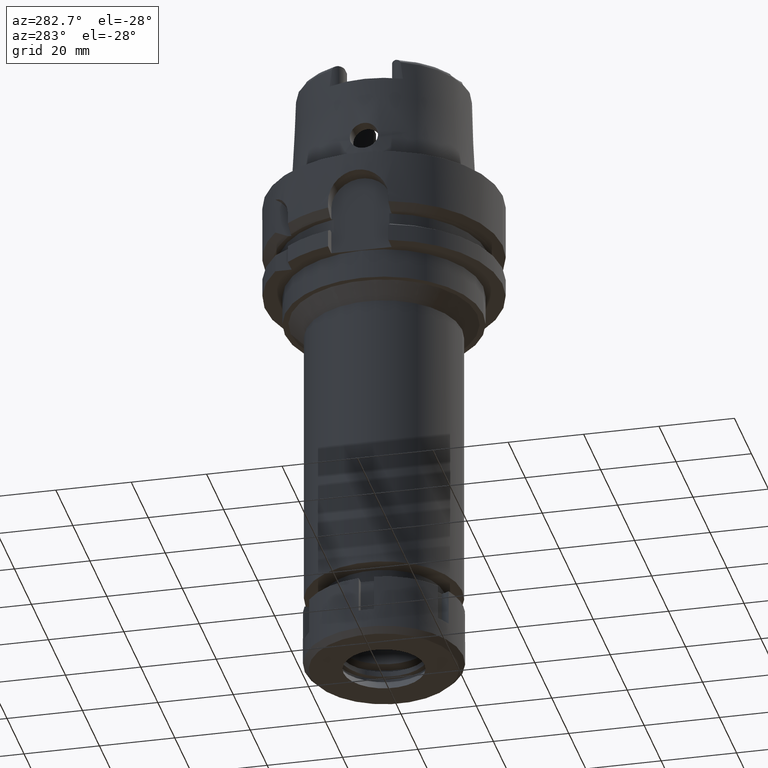
[diagram: clean part render]
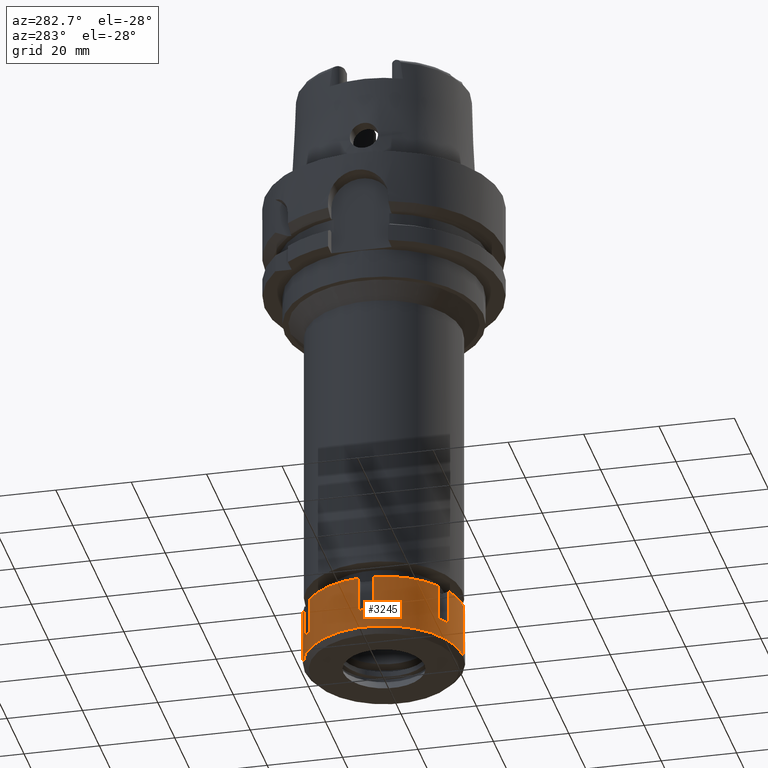
[diagram: same view with one face highlighted and labeled with its STEP entity id]
A machine part, auxiliary view. The second image highlights one B-rep face of the part: STEP entity #3245.
In plain terms, the highlighted cylindrical surface (partial cylindrical patch) has radius 21 mm, axis along (0, 0, -1).
Its self-contained STEP definition (entity closure, byte-faithful):
#21 = DIRECTION ( 'NONE',  ( 0.0000000000000000000, 0.0000000000000000000, -1.000000000000000000 ) ) ;
#61 = AXIS2_PLACEMENT_3D ( 'NONE', #2734, #2707, #4599 ) ;
#121 = FACE_OUTER_BOUND ( 'NONE', #3756, .T. ) ;
#152 = VECTOR ( 'NONE', #3441, 1000.000000000000000 ) ;
#157 = DIRECTION ( 'NONE',  ( 0.0000000000000000000, 0.0000000000000000000, 1.000000000000000000 ) ) ;
#216 = CARTESIAN_POINT ( 'NONE',  ( -20.90454496036999998, -2.000000000000000000, -9.500000000000000000 ) ) ;
#243 = CIRCLE ( 'NONE', #3870, 21.00000000000000711 ) ;
#249 = CARTESIAN_POINT ( 'NONE',  ( -12.18432328774999895, -17.10386699022999935, 0.0000000000000000000 ) ) ;
#272 = DIRECTION ( 'NONE',  ( -0.4152486510768949035, 0.9097079519157886818, 0.0000000000000000000 ) ) ;
#287 = VERTEX_POINT ( 'NONE', #1534 ) ;
#294 = CARTESIAN_POINT ( 'NONE',  ( -12.18432328774999895, -17.10386699022999935, 0.0000000000000000000 ) ) ;
#425 = EDGE_CURVE ( 'NONE', #5271, #1603, #1987, .T. ) ;
#427 = CARTESIAN_POINT ( 'NONE',  ( -8.720221672615000585, 19.10386699022999935, 0.0000000000000000000 ) ) ;
#433 = CIRCLE ( 'NONE', #2982, 20.99999999999999289 ) ;
#476 = CARTESIAN_POINT ( 'NONE',  ( 0.0000000000000000000, 0.0000000000000000000, -9.500000000000000000 ) ) ;
#477 = ORIENTED_EDGE ( 'NONE', *, *, #1122, .T. ) ;
#491 = CARTESIAN_POINT ( 'NONE',  ( 0.0000000000000000000, 0.0000000000000000000, 0.0000000000000000000 ) ) ;
#504 = VERTEX_POINT ( 'NONE', #1093 ) ;
#654 = ORIENTED_EDGE ( 'NONE', *, *, #1822, .T. ) ;
#690 = DIRECTION ( 'NONE',  ( -0.5802058708454290725, -0.8144698566776411575, 0.0000000000000000000 ) ) ;
#692 = ORIENTED_EDGE ( 'NONE', *, *, #3793, .F. ) ;
#702 = CARTESIAN_POINT ( 'NONE',  ( -20.90454496036999998, 2.000000000000000000, -9.500000000000000000 ) ) ;
#741 = VERTEX_POINT ( 'NONE', #1078 ) ;
#746 = CARTESIAN_POINT ( 'NONE',  ( -12.18432328774999895, 17.10386699022999935, -9.500000000000000000 ) ) ;
#787 = CARTESIAN_POINT ( 'NONE',  ( -8.720221672615000585, 19.10386699022999935, 0.0000000000000000000 ) ) ;
#837 = EDGE_CURVE ( 'NONE', #4298, #5041, #3034, .T. ) ;
#871 = CARTESIAN_POINT ( 'NONE',  ( -12.18432328774999895, 17.10386699022999935, -9.500000000000000000 ) ) ;
#1002 = VERTEX_POINT ( 'NONE', #2899 ) ;
#1032 = AXIS2_PLACEMENT_3D ( 'NONE', #491, #1057, #4775 ) ;
#1037 = EDGE_CURVE ( 'NONE', #504, #1002, #4571, .T. ) ;
#1052 = DIRECTION ( 'NONE',  ( 0.0000000000000000000, 0.0000000000000000000, -1.000000000000000000 ) ) ;
#1057 = DIRECTION ( 'NONE',  ( 0.0000000000000000000, 0.0000000000000000000, -1.000000000000000000 ) ) ;
#1078 = CARTESIAN_POINT ( 'NONE',  ( 0.0000000000000000000, -21.00000000000000000, 0.0000000000000000000 ) ) ;
#1087 = LINE ( 'NONE', #216, #4675 ) ;
#1093 = CARTESIAN_POINT ( 'NONE',  ( -8.720221672615998898, -19.10386699022999935, -9.500000000000000000 ) ) ;
#1122 = EDGE_CURVE ( 'NONE', #5345, #3498, #4491, .T. ) ;
#1138 = ORIENTED_EDGE ( 'NONE', *, *, #3335, .F. ) ;
#1207 = ORIENTED_EDGE ( 'NONE', *, *, #837, .F. ) ;
#1308 = CARTESIAN_POINT ( 'NONE',  ( 0.0000000000000000000, 0.0000000000000000000, 0.0000000000000000000 ) ) ;
#1316 = ORIENTED_EDGE ( 'NONE', *, *, #1828, .T. ) ;
#1438 = DIRECTION ( 'NONE',  ( 0.0000000000000000000, 0.0000000000000000000, -1.000000000000000000 ) ) ;
#1467 = ORIENTED_EDGE ( 'NONE', *, *, #1960, .F. ) ;
#1508 = ORIENTED_EDGE ( 'NONE', *, *, #1635, .F. ) ;
#1515 = DIRECTION ( 'NONE',  ( 0.0000000000000000000, -1.000000000000000000, 0.0000000000000000000 ) ) ;
#1534 = CARTESIAN_POINT ( 'NONE',  ( -8.720221672615000585, 19.10386699022999935, -9.500000000000000000 ) ) ;
#1538 = CIRCLE ( 'NONE', #61, 20.99999999999999289 ) ;
#1603 = VERTEX_POINT ( 'NONE', #3230 ) ;
#1617 = CARTESIAN_POINT ( 'NONE',  ( 0.0000000000000000000, 0.0000000000000000000, 0.0000000000000000000 ) ) ;
#1635 = EDGE_CURVE ( 'NONE', #3521, #287, #4138, .T. ) ;
#1638 = LINE ( 'NONE', #746, #5079 ) ;
#1703 = DIRECTION ( 'NONE',  ( 0.0000000000000000000, 0.0000000000000000000, -1.000000000000000000 ) ) ;
#1739 = ORIENTED_EDGE ( 'NONE', *, *, #2268, .T. ) ;
#1822 = EDGE_CURVE ( 'NONE', #3468, #5041, #433, .T. ) ;
#1828 = EDGE_CURVE ( 'NONE', #3498, #2067, #3273, .T. ) ;
#1848 = DIRECTION ( 'NONE',  ( -0.9954545219222313834, -0.09523809523810303213, 0.0000000000000000000 ) ) ;
#1885 = CARTESIAN_POINT ( 'NONE',  ( -12.18432328774999895, 17.10386699022999935, 0.0000000000000000000 ) ) ;
#1888 = DIRECTION ( 'NONE',  ( -0.4152486510768949035, -0.9097079519157886818, 0.0000000000000000000 ) ) ;
#1899 = CARTESIAN_POINT ( 'NONE',  ( 0.0000000000000000000, -21.00000000000000000, 0.0000000000000000000 ) ) ;
#1936 = CYLINDRICAL_SURFACE ( 'NONE', #4875, 21.00000000000000000 ) ;
#1960 = EDGE_CURVE ( 'NONE', #3468, #1603, #1087, .T. ) ;
#1961 = VECTOR ( 'NONE', #4569, 1000.000000000000000 ) ;
#1984 = ORIENTED_EDGE ( 'NONE', *, *, #2071, .T. ) ;
#1987 = CIRCLE ( 'NONE', #4662, 20.99999999999999645 ) ;
#2025 = ORIENTED_EDGE ( 'NONE', *, *, #5970, .F. ) ;
#2036 = DIRECTION ( 'NONE',  ( 0.0000000000000000000, 0.0000000000000000000, -1.000000000000000000 ) ) ;
#2067 = VERTEX_POINT ( 'NONE', #2455 ) ;
#2071 = EDGE_CURVE ( 'NONE', #3521, #5345, #243, .T. ) ;
#2268 = EDGE_CURVE ( 'NONE', #741, #4977, #2795, .T. ) ;
#2369 = DIRECTION ( 'NONE',  ( 0.0000000000000000000, 0.0000000000000000000, -1.000000000000000000 ) ) ;
#2399 = DIRECTION ( 'NONE',  ( 0.0000000000000000000, 0.0000000000000000000, 1.000000000000000000 ) ) ;
#2455 = CARTESIAN_POINT ( 'NONE',  ( 0.0000000000000000000, -21.00000000000000000, -14.50000000000000000 ) ) ;
#2518 = CARTESIAN_POINT ( 'NONE',  ( -8.720221672615998898, -19.10386699022999935, 0.0000000000000000000 ) ) ;
#2707 = DIRECTION ( 'NONE',  ( 0.0000000000000000000, 0.0000000000000000000, -1.000000000000000000 ) ) ;
#2734 = CARTESIAN_POINT ( 'NONE',  ( 0.0000000000000000000, 0.0000000000000000000, 0.0000000000000000000 ) ) ;
#2795 = CIRCLE ( 'NONE', #1032, 21.00000000000000000 ) ;
#2899 = CARTESIAN_POINT ( 'NONE',  ( -12.18432328774999895, -17.10386699022999935, -9.500000000000000000 ) ) ;
#2941 = DIRECTION ( 'NONE',  ( 0.0000000000000000000, 0.0000000000000000000, 1.000000000000000000 ) ) ;
#2947 = CARTESIAN_POINT ( 'NONE',  ( -20.90454496036999998, -2.000000000000000000, -9.500000000000000000 ) ) ;
#2982 = AXIS2_PLACEMENT_3D ( 'NONE', #4738, #2369, #1848 ) ;
#3034 = LINE ( 'NONE', #3955, #5149 ) ;
#3230 = CARTESIAN_POINT ( 'NONE',  ( -20.90454496036999998, -2.000000000000000000, 0.0000000000000000000 ) ) ;
#3245 = ADVANCED_FACE ( 'NONE', ( #121 ), #1936, .T. ) ;
#3273 = CIRCLE ( 'NONE', #5459, 21.00000000000000000 ) ;
#3335 = EDGE_CURVE ( 'NONE', #4754, #5668, #1638, .T. ) ;
#3365 = AXIS2_PLACEMENT_3D ( 'NONE', #476, #21, #1888 ) ;
#3392 = EDGE_CURVE ( 'NONE', #5271, #1002, #3971, .T. ) ;
#3441 = DIRECTION ( 'NONE',  ( 0.0000000000000000000, 0.0000000000000000000, -1.000000000000000000 ) ) ;
#3468 = VERTEX_POINT ( 'NONE', #2947 ) ;
#3472 = CARTESIAN_POINT ( 'NONE',  ( 0.0000000000000000000, 21.00000000000000000, -14.50000000000000000 ) ) ;
#3479 = ORIENTED_EDGE ( 'NONE', *, *, #3736, .T. ) ;
#3498 = VERTEX_POINT ( 'NONE', #3472 ) ;
#3521 = VERTEX_POINT ( 'NONE', #427 ) ;
#3604 = ORIENTED_EDGE ( 'NONE', *, *, #1037, .T. ) ;
#3616 = CARTESIAN_POINT ( 'NONE',  ( 0.0000000000000000000, 0.0000000000000000000, -9.500000000000000000 ) ) ;
#3671 = CARTESIAN_POINT ( 'NONE',  ( 0.0000000000000000000, 21.00000000000000000, 0.0000000000000000000 ) ) ;
#3736 = EDGE_CURVE ( 'NONE', #4298, #5668, #1538, .T. ) ;
#3756 = EDGE_LOOP ( 'NONE', ( #1508, #1984, #477, #1316, #692, #1739, #2025, #3604, #4454, #4452, #1467, #654, #1207, #3479, #1138, #3817 ) ) ;
#3786 = VECTOR ( 'NONE', #1052, 1000.000000000000000 ) ;
#3793 = EDGE_CURVE ( 'NONE', #741, #2067, #5172, .T. ) ;
#3813 = DIRECTION ( 'NONE',  ( 0.0000000000000000000, 0.0000000000000000000, -1.000000000000000000 ) ) ;
#3817 = ORIENTED_EDGE ( 'NONE', *, *, #5549, .T. ) ;
#3870 = AXIS2_PLACEMENT_3D ( 'NONE', #1308, #5454, #272 ) ;
#3955 = CARTESIAN_POINT ( 'NONE',  ( -20.90454496036999998, 2.000000000000000000, 0.0000000000000000000 ) ) ;
#3971 = LINE ( 'NONE', #249, #152 ) ;
#4069 = LINE ( 'NONE', #5880, #1961 ) ;
#4110 = CARTESIAN_POINT ( 'NONE',  ( -20.90454496036999998, 2.000000000000000000, 0.0000000000000000000 ) ) ;
#4138 = LINE ( 'NONE', #787, #4477 ) ;
#4250 = CARTESIAN_POINT ( 'NONE',  ( 0.0000000000000000000, 0.0000000000000000000, -14.50000000000000000 ) ) ;
#4262 = DIRECTION ( 'NONE',  ( -0.5802058708453158298, 0.8144698566777217597, 0.0000000000000000000 ) ) ;
#4298 = VERTEX_POINT ( 'NONE', #4110 ) ;
#4366 = VECTOR ( 'NONE', #4852, 1000.000000000000000 ) ;
#4452 = ORIENTED_EDGE ( 'NONE', *, *, #425, .T. ) ;
#4454 = ORIENTED_EDGE ( 'NONE', *, *, #3392, .F. ) ;
#4477 = VECTOR ( 'NONE', #1703, 1000.000000000000000 ) ;
#4491 = LINE ( 'NONE', #4522, #4366 ) ;
#4522 = CARTESIAN_POINT ( 'NONE',  ( 0.0000000000000000000, 21.00000000000000000, 0.0000000000000000000 ) ) ;
#4529 = DIRECTION ( 'NONE',  ( 0.0000000000000000000, 0.0000000000000000000, -1.000000000000000000 ) ) ;
#4569 = DIRECTION ( 'NONE',  ( 0.0000000000000000000, 0.0000000000000000000, 1.000000000000000000 ) ) ;
#4571 = CIRCLE ( 'NONE', #3365, 21.00000000000000711 ) ;
#4599 = DIRECTION ( 'NONE',  ( -0.9954545219222313834, 0.09523809523810303213, 0.0000000000000000000 ) ) ;
#4662 = AXIS2_PLACEMENT_3D ( 'NONE', #1617, #2036, #690 ) ;
#4675 = VECTOR ( 'NONE', #2941, 1000.000000000000000 ) ;
#4738 = CARTESIAN_POINT ( 'NONE',  ( 0.0000000000000000000, 0.0000000000000000000, -9.500000000000000000 ) ) ;
#4754 = VERTEX_POINT ( 'NONE', #871 ) ;
#4775 = DIRECTION ( 'NONE',  ( 0.0000000000000000000, -1.000000000000000000, 0.0000000000000000000 ) ) ;
#4777 = CARTESIAN_POINT ( 'NONE',  ( 0.0000000000000000000, 0.0000000000000000000, 0.0000000000000000000 ) ) ;
#4852 = DIRECTION ( 'NONE',  ( 0.0000000000000000000, 0.0000000000000000000, -1.000000000000000000 ) ) ;
#4875 = AXIS2_PLACEMENT_3D ( 'NONE', #4777, #3813, #1515 ) ;
#4923 = CIRCLE ( 'NONE', #5609, 21.00000000000000711 ) ;
#4977 = VERTEX_POINT ( 'NONE', #2518 ) ;
#5041 = VERTEX_POINT ( 'NONE', #702 ) ;
#5079 = VECTOR ( 'NONE', #157, 1000.000000000000000 ) ;
#5149 = VECTOR ( 'NONE', #4529, 1000.000000000000000 ) ;
#5172 = LINE ( 'NONE', #1899, #3786 ) ;
#5199 = DIRECTION ( 'NONE',  ( 0.0000000000000000000, 1.000000000000000000, 0.0000000000000000000 ) ) ;
#5271 = VERTEX_POINT ( 'NONE', #294 ) ;
#5345 = VERTEX_POINT ( 'NONE', #3671 ) ;
#5454 = DIRECTION ( 'NONE',  ( 0.0000000000000000000, 0.0000000000000000000, -1.000000000000000000 ) ) ;
#5459 = AXIS2_PLACEMENT_3D ( 'NONE', #4250, #2399, #5199 ) ;
#5549 = EDGE_CURVE ( 'NONE', #4754, #287, #4923, .T. ) ;
#5609 = AXIS2_PLACEMENT_3D ( 'NONE', #3616, #1438, #4262 ) ;
#5668 = VERTEX_POINT ( 'NONE', #1885 ) ;
#5880 = CARTESIAN_POINT ( 'NONE',  ( -8.720221672615000585, -19.10386699022999935, -9.500000000000000000 ) ) ;
#5970 = EDGE_CURVE ( 'NONE', #504, #4977, #4069, .T. ) ;